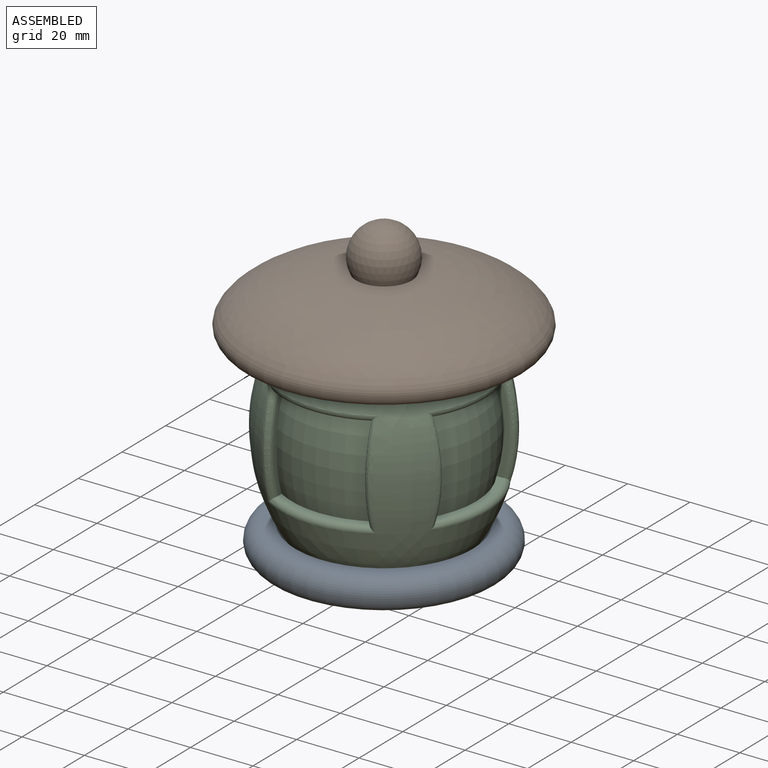
[diagram: assembled view]
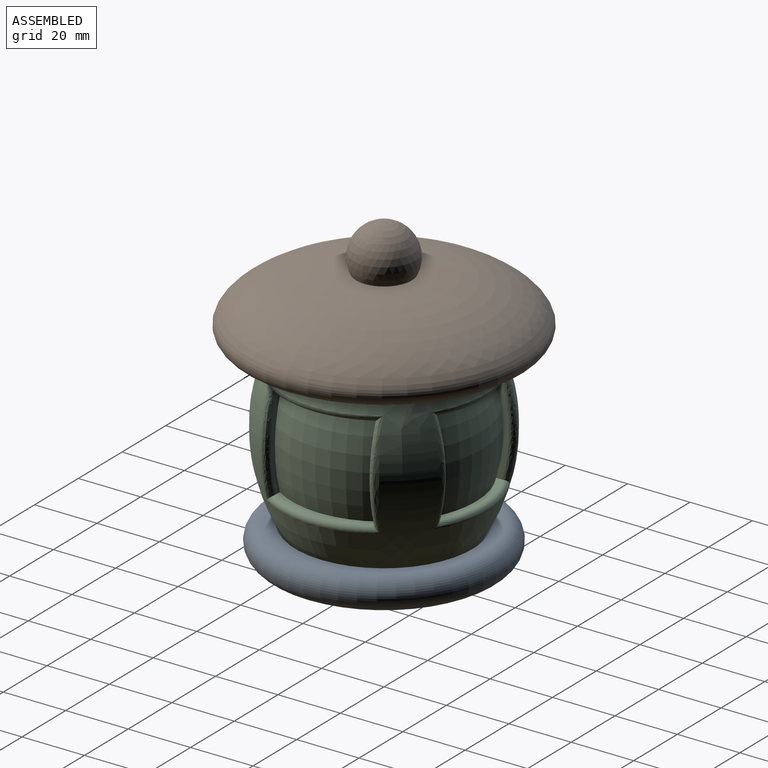
[diagram: assembled view, second angle]
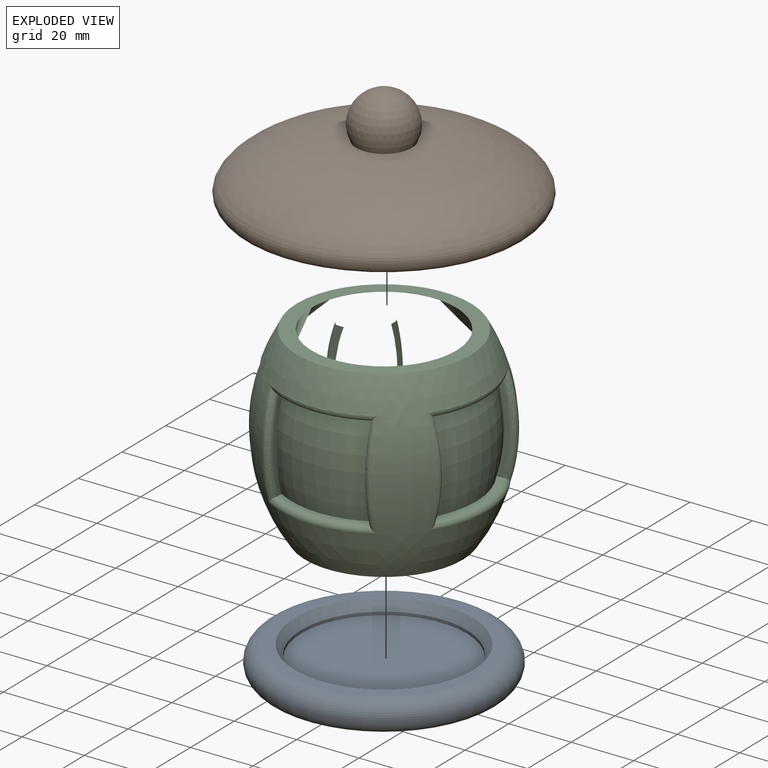
[diagram: exploded view]
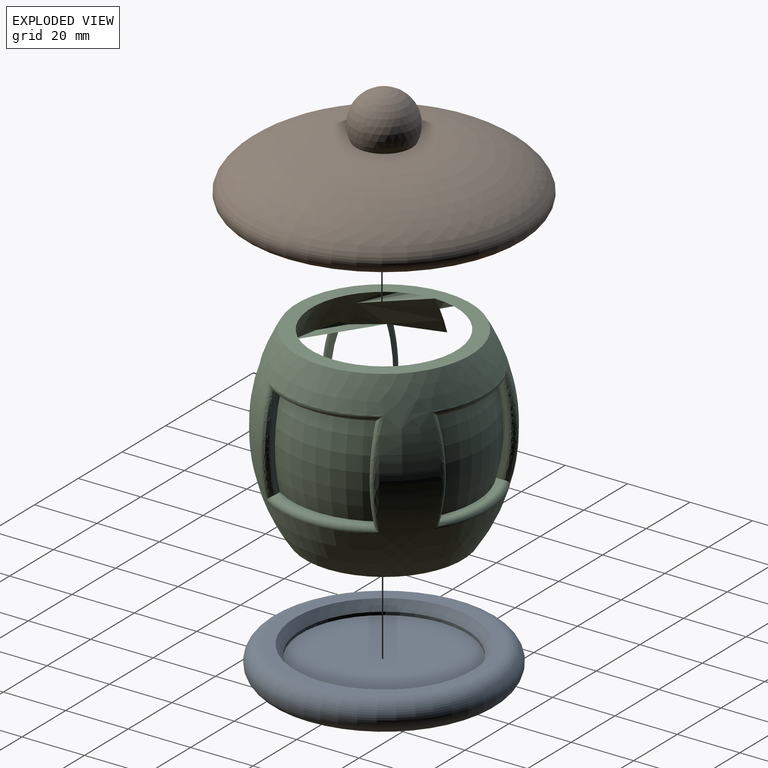
[diagram: exploded view, second angle]
ASSEMBLY  parts=3 mates=2
PART A: 6 faces, bbox 80.1x80.1x10 mm
  f0: cylinder r=26.5mm len=53mm, axis (0,0,1), area 166.5mm2, adj f1,f5
  f1: plane 53x53mm, normal (0,0,1), area 2206.2mm2, adj f0
  f2: plane 64x64mm, normal (0,0,-1), area 3217mm2, adj f3
  f3: torus R=32mm, axis (0,0,1), area 3472.4mm2, adj f2,f4
  f4: plane 64x64mm, normal (0,0,1), area 665.2mm2, adj f3,f5
  f5: cone r=26.5mm half-angle=33.7deg, axis (0,0,1), area 623mm2, adj f0,f4
PART B: 6 faces, bbox 90.1x90.1x33 mm
  f0: revolved ~47x47mm, area 2106.8mm2, adj f1
  f1: plane 57x57mm, normal (0,0,-1), area 816.8mm2, adj f0,f5
  f2: plane 84.67x84.67mm, normal (0,0,-1), area 2896.3mm2, adj f3,f5
  f3: revolved ~90.13x90.13mm, area 8744.9mm2, adj f2,f4
  f4: sphere r=10mm, area 911.1mm2, adj f3
  f5: cone r=29.5mm half-angle=26.6deg, axis (0,0,-1), area 407.4mm2, adj f1,f2
PART C: 38 faces, bbox 72x72x60.2 mm
  f0: revolved ~70.95x70.95mm, area 7701.5mm2, adj f2,f3,f21,f22,f23,f24,f25,f26
  f1: revolved ~62.96x62.96mm, area 6673.8mm2, adj f3,f4,f5,f6,f7,f8,f9,f10
  f2: plane 50.64x50.64mm, normal (0,0,-1), area 2013.9mm2, adj f0
  f3: plane 55.79x55.79mm, normal (0,0,1), area 753.8mm2, adj f0,f1
  f4: plane 46.39x46.39mm, normal (0,0,1), area 1690.5mm2, adj f1
  f5: plane 32.12x6.75mm, normal (0,0,1), area 68.5mm2, adj f1,f6,f8,f29,f31,f32
  f6: plane 30.02x4.86mm, normal (0,1,0), area 56.2mm2, adj f1,f5,f7,f29
  f7: plane 32.09x6.83mm, normal (0,0,-1), area 67.3mm2, adj f1,f6,f8,f29,f30,f32
  f8: plane 30.02x4.86mm, normal (0,-1,0), area 56.2mm2, adj f1,f5,f7,f32
  f9: plane 31.34x5.05mm, normal (0,-1,0), area 56.5mm2, adj f1,f10,f12,f36,f37
  f10: plane 32.09x6.83mm, normal (0,0,-1), area 67.3mm2, adj f1,f9,f11,f33,f35,f36
  f11: plane 31.34x5.05mm, normal (0,1,0), area 56.5mm2, adj f1,f10,f12,f33,f37
  f12: plane 32.12x5.34mm, normal (0,0,1), area 28.1mm2, adj f9,f11,f33,f34,f36,f37
  f13: plane 30.09x6.13mm, normal (0,0,1), area 63.7mm2, adj f1,f14,f16,f25,f26,f28
  f14: plane 30.01x4.81mm, normal (1,0,0), area 56.7mm2, adj f1,f13,f15,f25
  f15: plane 30.06x6.19mm, normal (0,0,-1), area 62.7mm2, adj f1,f14,f16,f25,f27,f28
  f16: plane 30.01x4.81mm, normal (-1,0,0), area 56.7mm2, adj f1,f13,f15,f28
  f17: plane 30.02x4.81mm, normal (-1,0,0), area 56.7mm2, adj f1,f18,f20,f24
  f18: plane 30.06x6.19mm, normal (0,0,-1), area 62.7mm2, adj f1,f17,f19,f21,f22,f24
  f19: plane 30.02x4.81mm, normal (1,0,0), area 56.7mm2, adj f1,f18,f20,f21
  f20: plane 30.09x6.13mm, normal (0,0,1), area 63.7mm2, adj f1,f17,f19,f21,f23,f24
  f21: bspline ~43.07x7.76mm, area 107mm2, adj f0,f18,f19,f20,f22,f23
  f22: torus R=30.92mm, axis (0,0,1), area 102.3mm2, adj f0,f18,f21,f24
  f23: torus R=31.57mm, axis (0,0,1), area 100.1mm2, adj f0,f20,f21,f24
  f24: bspline ~42.63x8.07mm, area 107mm2, adj f0,f17,f18,f20,f22,f23
  f25: bspline ~42.34x7.28mm, area 107mm2, adj f0,f13,f14,f15,f26,f27
  f26: torus R=31.57mm, axis (0,0,1), area 100.1mm2, adj f0,f13,f25,f28
  f27: torus R=30.92mm, axis (0,0,1), area 102.3mm2, adj f0,f15,f25,f28
  f28: bspline ~42.34x7.28mm, area 107mm2, adj f0,f13,f15,f16,f26,f27
  f29: bspline ~43.16x7.9mm, area 108.8mm2, adj f0,f5,f6,f7,f30,f31
  f30: torus R=30.92mm, axis (0,0,1), area 109.7mm2, adj f0,f7,f29,f32
  f31: torus R=31.57mm, axis (0,0,1), area 107.3mm2, adj f0,f5,f29,f32
  f32: bspline ~42.63x8.23mm, area 108.8mm2, adj f0,f5,f7,f8,f30,f31
  f33: bspline ~42.38x7.76mm, area 108.8mm2, adj f0,f10,f11,f12,f34,f35
  f34: torus R=31.57mm, axis (0,0,1), area 107.3mm2, adj f0,f12,f33,f36
  f35: torus R=30.92mm, axis (0,0,1), area 109.7mm2, adj f0,f10,f33,f36
  f36: bspline ~42.38x7.76mm, area 108.8mm2, adj f0,f9,f10,f12,f34,f35
  f37: torus R=30.73mm, axis (0,0,1), area 68.5mm2, adj f1,f9,f11,f12
PLACE A t=(0,0,-6)mm
PLACE B t=(0,0,58)mm
PLACE C at identity fixed
MATE fastened B.f5 <-> C.f22  axis (0,0,-1) through (0,0,60)mm
MATE fastened C.f22 <-> A.f0  axis (0,0,-1) through (0,0,0)mm
